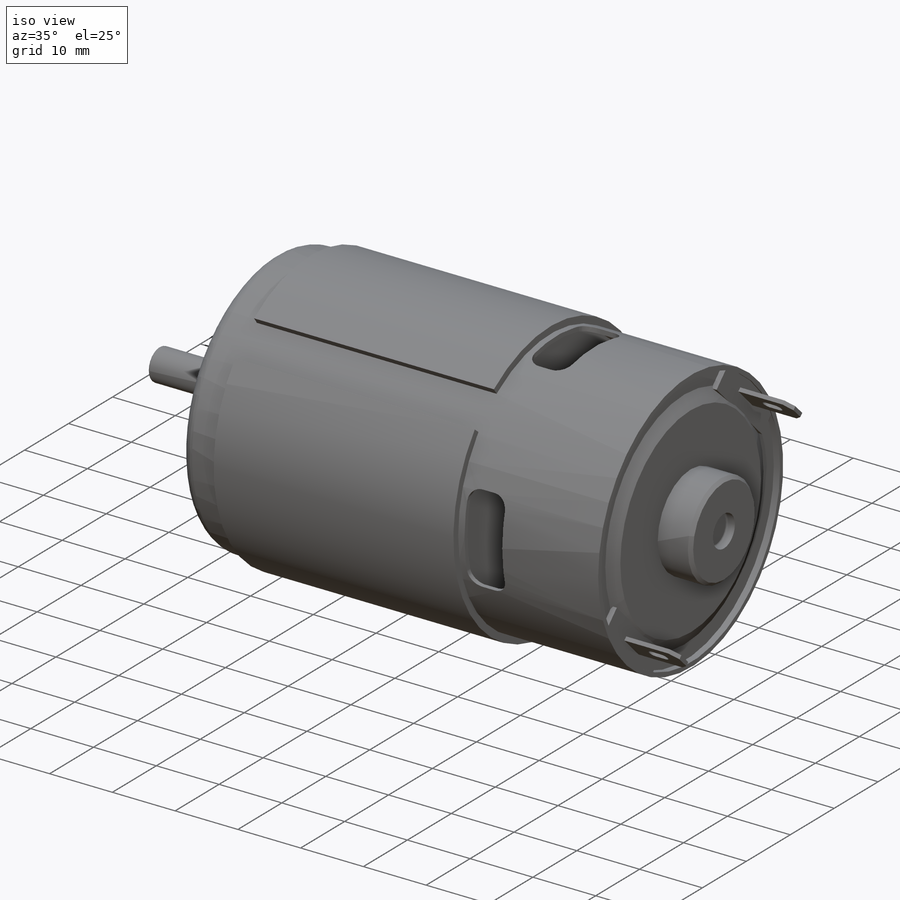
[diagram: iso view]
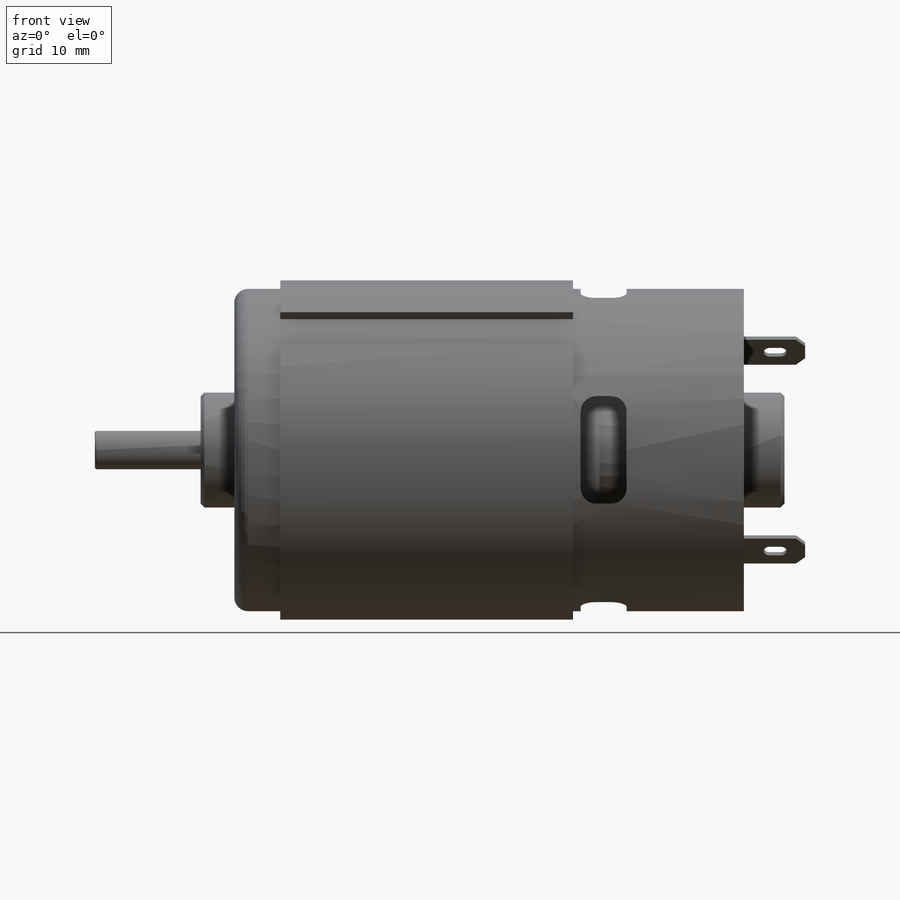
[diagram: front view]
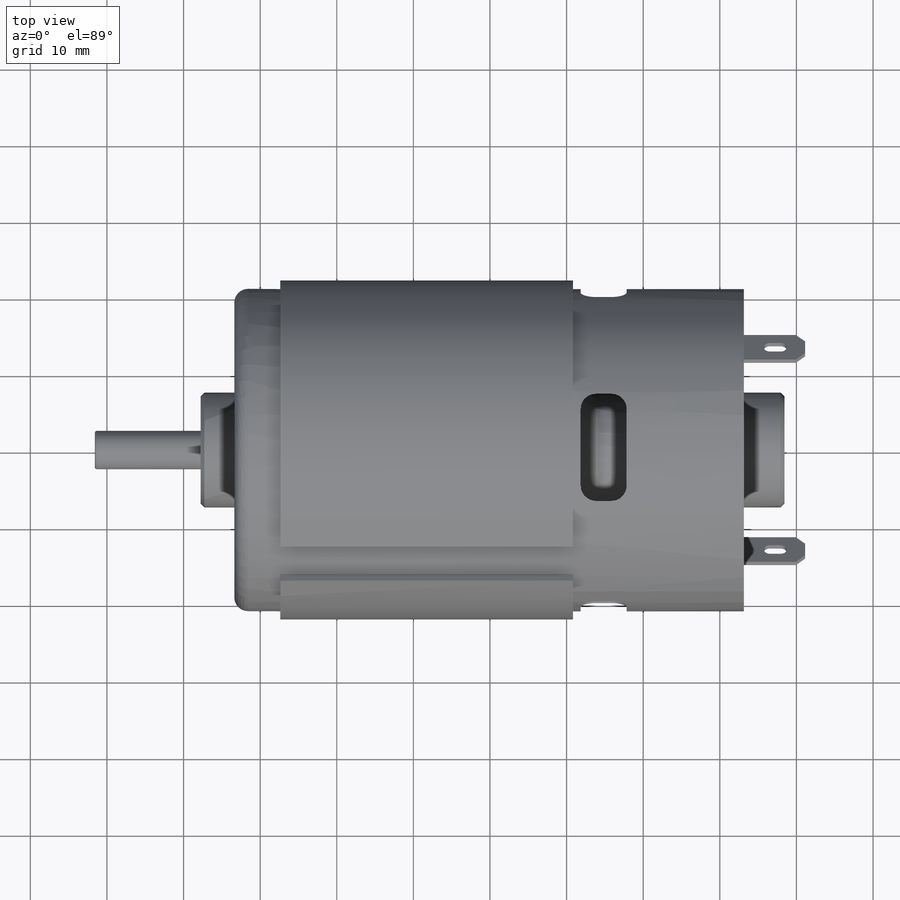
[diagram: top view]
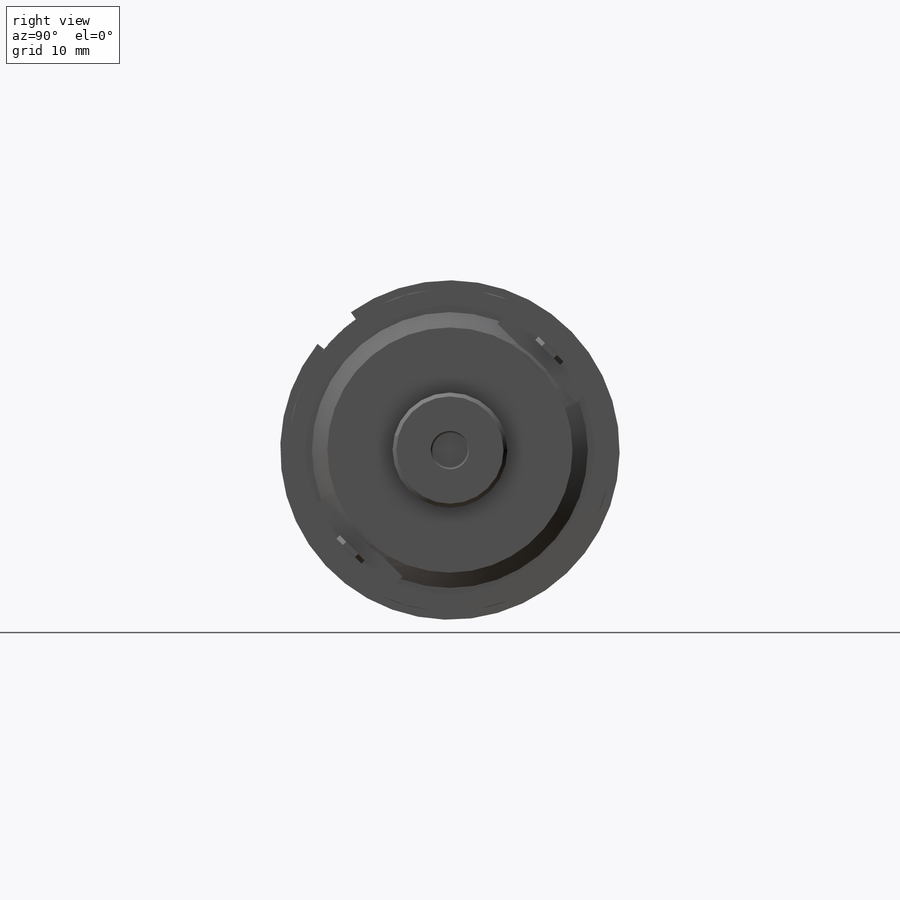
[diagram: right view]
SOLIDWORKS PART (.sldprt)
format: sldprt  version: not decoded by parser v0  size: 664,064 bytes
history: native  units: mm
features: sketch x9, plane x3, cut_extrude x3, extrude x3, chamfer x2, pattern_circular x2, material x1, revolve x1, fillet x1, hole x1 (+9 scaffold rows collapsed)
feature tree (35):
  scaffold x9  (default folders/planes/origin — collapsed)
  material  "Material <não especificado>"
  plane  "Plano frontal"
  plane  "Plano superior"
  plane  "Plano direito"
  sketch  "Esboço1"  dims[c1.D1=5.0mm c1.D2=13.8mm c1.D3=15.0mm c1.D4=4.4mm c1.D5=42.1mm c1.D6=90.0mm c1.D7=0.7mm c1.D8=1.8mm c1.D9=36.0mm c1.D10=32.0mm c1.D11=15.0mm c1.D12=4.3mm c1.D13=1.0mm c1.D14=66.5mm c2.D6=90.0mm c2.D8=44.0mm c2.D12=10.0mm c2.D15=4.0mm c2.D16=2.0mm c2.D17=29.0mm]
  revolve  "Revolução1"  Angle=360deg
  fillet  "Filete1"  Radius=1.8mm
  chamfer  "Chanfro1"  Distance=0.5mm Angle=45deg
  chamfer  "Filete2"  Distance=0.25mm
  sketch  "Esboço2"  dims[c1.D1=34.0mm c1.D2=24.2mm c1.D3=23.5mm c1.D7=2.0mm c1.D4=12.5mm c1.D6=~38.489436mm c2.D6=45.0deg c2.D8=14.5mm c2.D5=4.0 c2.D9=2.0]
  cut_extrude  "Corte-extrusão1"  Depth=3mm
  hole  "Furo roscado de M4x0.71"  Diameter=3.3mm Depth=11.5mm
  sketch  "Esboço4"
  sketch  "Esboço3"  dims[hole-wizard template sketch: 47 standard entries collapsed; hole parameters kept: c15.Tap Drill Depth=11.5mm c15.D3=~14.816244mm c15.Drill Angle=118.0deg]
  sketch  "Esboço5"  dims[c1.D1=44.3mm c1.D2=0.7mm c2.D2=~18.786173deg c3.D2=5.7mm]
  extrude  "Ressalto-extrusão1"  Depth=38.2mm
  sketch  "Esboço6"  dims[D3=2.0mm D1=6.0mm D2=14.0mm D4=1.0mm]
  cut_extrude  "Corte-extrusão2"  Depth=12mm
  pattern_circular  "PadrãoCircular1"  Count=4 Angle=360deg
  sketch  "Esboço7"  dims[c1.D1=~47.709352mm c2.D1=45.0deg c2.D2=5.0mm c2.D3=14.6mm c2.D4=4.6mm c2.D5=0.6mm c2.D6=2.6mm]
  extrude  "Ressalto-extrusão2"  Depth=0.8mm
  extrude  "Ressalto-extrusão3"  [1 undecoded]
  sketch  "Esboço7<3>"  dims[D1=9.0mm]
  sketch  "Esboço8"  dims[c1.D3=0.9mm c1.D1=1.2mm c1.D2=1.2mm c2.D3=2.4mm c2.D4=1.4mm]
  cut_extrude  "Corte-extrusão3"  Depth=2mm
  pattern_circular  "PadrãoCircular2"  Count=2 Angle=360deg
decode coverage: 20 of 22 modeling features carry decoded parameters
note: ~ marks probable driven/reference dimensions
note: 1 parameter value undecoded
note: suppression state not decoded; provenance and decode notes live in map.json
